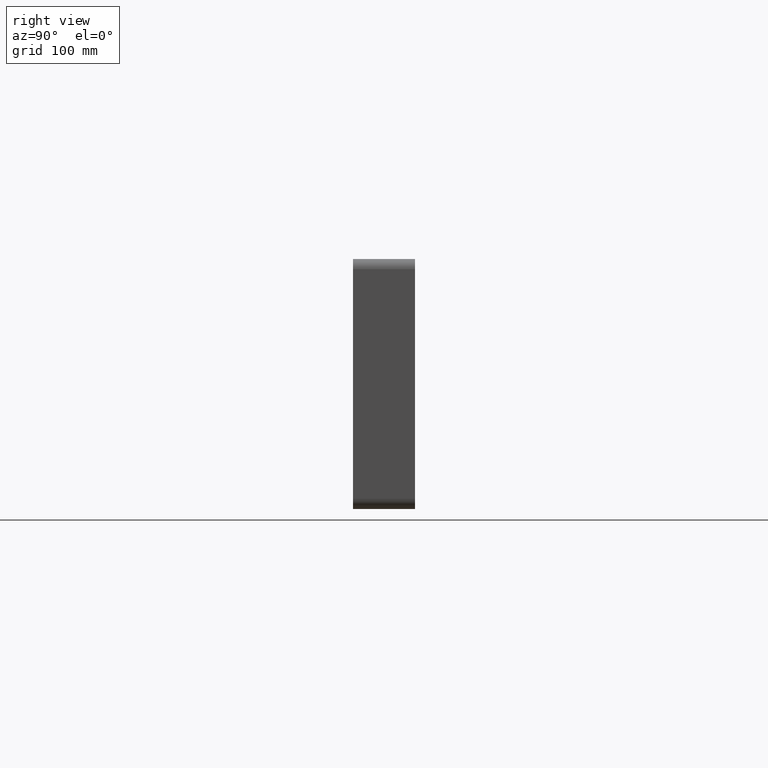
[diagram: clean part render]
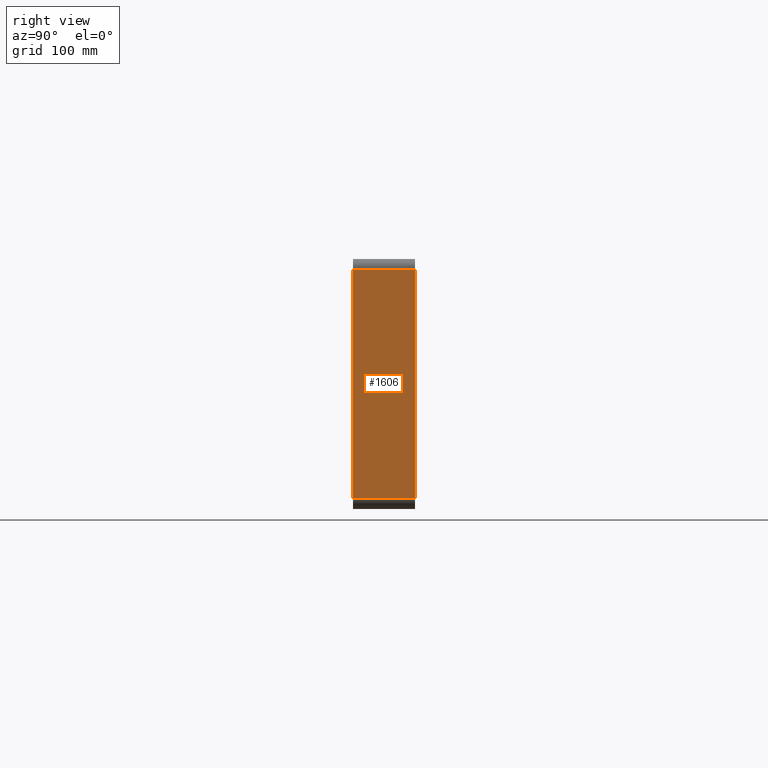
[diagram: same view with one face highlighted and labeled with its STEP entity id]
A machine part, right view. The second image highlights one B-rep face of the part: STEP entity #1606.
In plain terms, the highlighted planar face has unit normal (1, 0, 0).
Its self-contained STEP definition (entity closure, byte-faithful):
#659=CARTESIAN_POINT('',(331.25,-3.0,-111.00000000000001));
#660=VERTEX_POINT('',#659);
#670=CARTESIAN_POINT('',(331.25,-3.0,111.00000000000001));
#671=VERTEX_POINT('',#670);
#672=CARTESIAN_POINT('',(331.25,-3.0,-111.00000000000001));
#673=DIRECTION('',(0.0,0.0,1.0));
#674=VECTOR('',#673,222.00000000000003);
#675=LINE('',#672,#674);
#676=EDGE_CURVE('',#660,#671,#675,.T.);
#1010=CARTESIAN_POINT('',(331.25,57.0,-111.00000000000001));
#1011=VERTEX_POINT('',#1010);
#1061=CARTESIAN_POINT('',(331.25,57.0,111.00000000000001));
#1062=VERTEX_POINT('',#1061);
#1070=CARTESIAN_POINT('',(331.25,57.0,111.00000000000001));
#1071=DIRECTION('',(0.0,0.0,-1.0));
#1072=VECTOR('',#1071,222.00000000000003);
#1073=LINE('',#1070,#1072);
#1074=EDGE_CURVE('',#1062,#1011,#1073,.T.);
#1574=CARTESIAN_POINT('',(331.25,57.0,-111.00000000000001));
#1575=DIRECTION('',(0.0,-1.0,0.0));
#1576=VECTOR('',#1575,60.0);
#1577=LINE('',#1574,#1576);
#1578=EDGE_CURVE('',#1011,#660,#1577,.T.);
#1590=CARTESIAN_POINT('',(331.25,0.0,121.00000000000001));
#1591=DIRECTION('',(1.0,0.0,0.0));
#1592=DIRECTION('',(0.0,0.0,-1.0));
#1593=AXIS2_PLACEMENT_3D('',#1590,#1591,#1592);
#1594=PLANE('',#1593);
#1595=ORIENTED_EDGE('',*,*,#1578,.F.);
#1596=ORIENTED_EDGE('',*,*,#1074,.F.);
#1597=CARTESIAN_POINT('',(331.25,-3.0,111.00000000000001));
#1598=DIRECTION('',(0.0,1.0,0.0));
#1599=VECTOR('',#1598,60.0);
#1600=LINE('',#1597,#1599);
#1601=EDGE_CURVE('',#671,#1062,#1600,.T.);
#1602=ORIENTED_EDGE('',*,*,#1601,.F.);
#1603=ORIENTED_EDGE('',*,*,#676,.F.);
#1604=EDGE_LOOP('',(#1595,#1596,#1602,#1603));
#1605=FACE_OUTER_BOUND('',#1604,.T.);
#1606=ADVANCED_FACE('',(#1605),#1594,.T.);